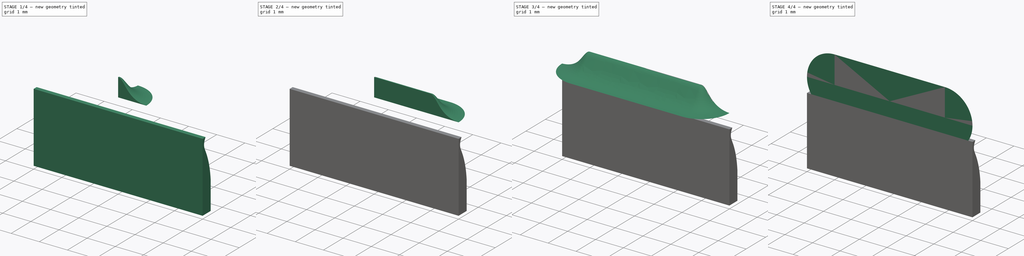
[diagram: build sequence overview — one tinted view per stage of 4, left to right]
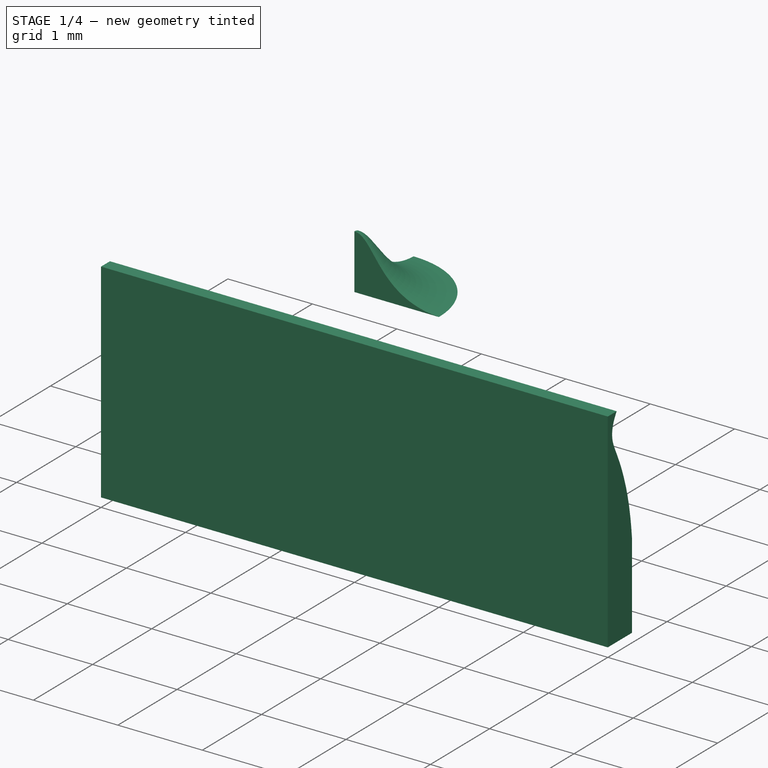
[diagram: stage 1 of 4 — iso view after this stage's code; geometry added in this stage tinted green]
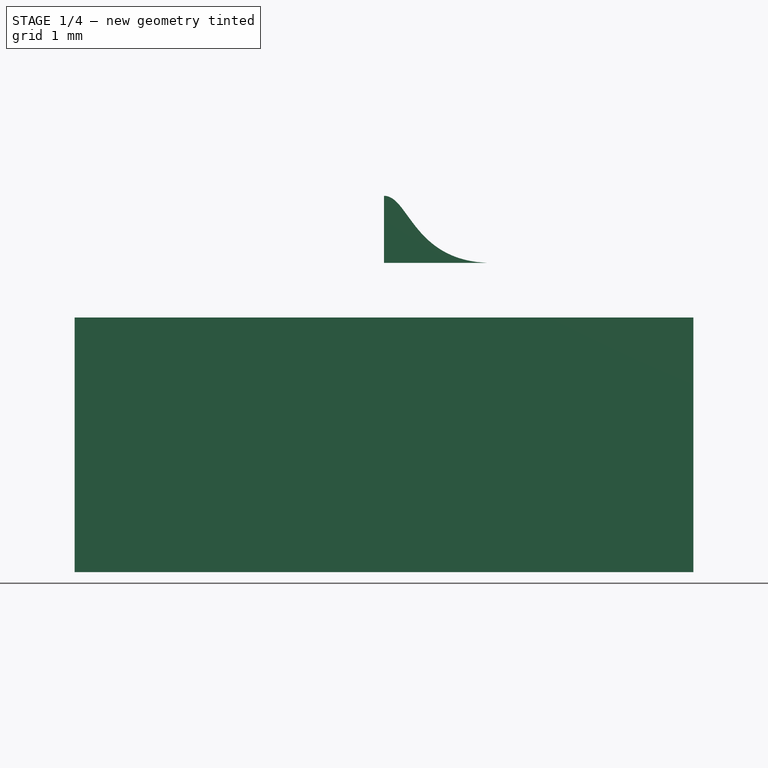
[diagram: stage 1 of 4 — front view after this stage's code; geometry added in this stage tinted green]
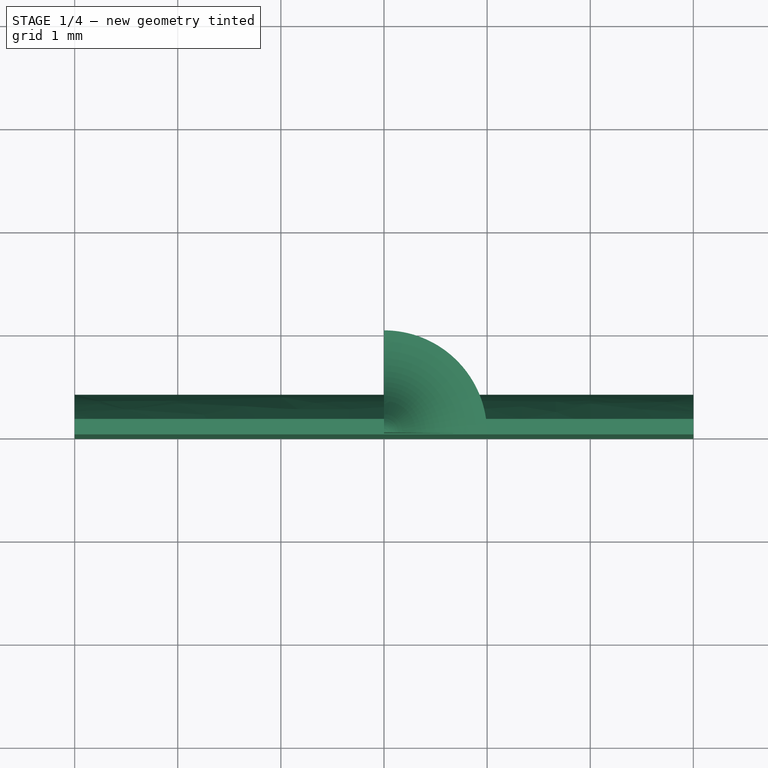
[diagram: stage 1 of 4 — top view after this stage's code; geometry added in this stage tinted green]
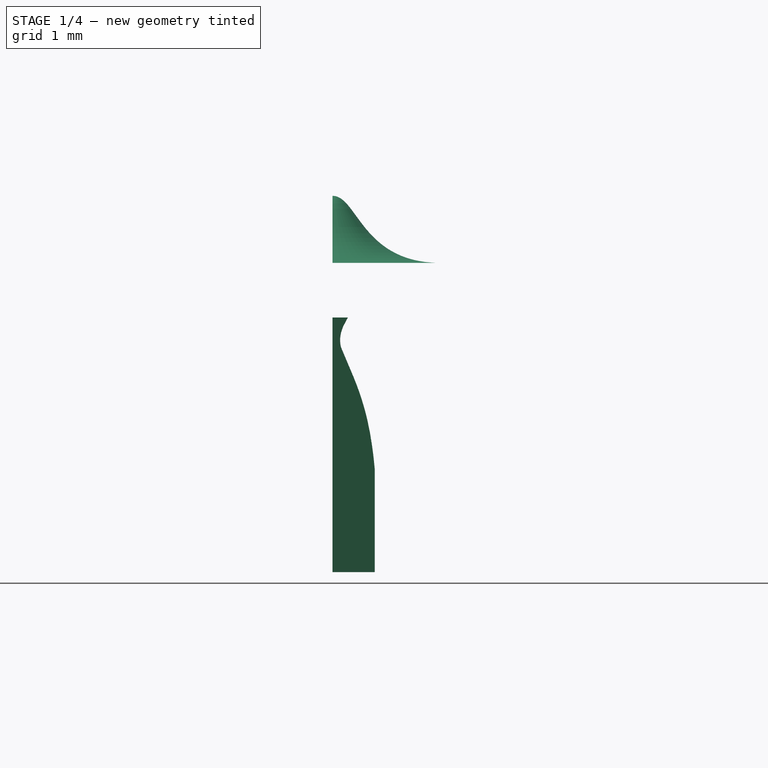
[diagram: stage 1 of 4 — right view after this stage's code; geometry added in this stage tinted green]
FCSTD DOCUMENT  (FreeCAD 0.21R33668 +26 (Git))
Label: snap-fit_pin-hole
License: All rights reserved
LicenseURL: http://en.wikipedia.org/wiki/All_rights_reserved
objects: Part::MultiFuse×4, Sketcher::SketchObject×3, PartDesign::Body×3, PartDesign::Pad×2, Part::Mirroring×2, PartDesign::Revolution×1
note: 18 computed .brp shape members not serialized (recipe doc carries the construction recipe); baked Part::Feature solids carry a one-line shape summary decoded from their .brp

FEATURE [PartDesign::Body] Body
  Group = -> [Sketch,Pad]
  Origin = -> Origin
  Tip = -> Pad
FEATURE [Sketcher::SketchObject] Sketch001
  FullyConstrained = true
  MapMode = 5
  Placement = pos=(0,0,0) rot=(0.57735,0.57735,0.57735;2.0944rad)
  sketch-geometry (10):
    g0: GeomPoint X=0 Y=0.65 Z=0
    g1-g4: Circle x4 (B-spline internal-alignment scaffolding for g5; pole/knot coordinates omitted)
    g5: BSplineCurve PolesCount=4 KnotsCount=2 Degree=3 IsPeriodic=0
    g6: GeomPoint X=1 Y=0 Z=0
    g7: GeomPoint X=0 Y=0.65 Z=0
    g8: LineSegment StartX=1 StartY=0 StartZ=0 EndX=0 EndY=0 EndZ=0
    g9: LineSegment StartX=0 StartY=0.65 StartZ=0 EndX=0 EndY=0 EndZ=0
  constraints (20):
    c: PointOnObject(g5,g-1)
    c: PointOnObject(g0,g-2)
    c: DistanceY(g-1,g0) = 0.65  'h'
    c: Weight(g1) = 1
    c: Equal(g1,g2)
    c: Equal(g1,g3)
    c: Equal(g1,g4)
    c: Coincident(g5,g0)
    c: InternalAlignment(g1-g4 -> g5) x4
    c: InternalAlignment(g6,g5)
    c: InternalAlignment(g7,g5)
    c: DistanceX(g2,g-1) = -0.28  'x1'
    c: DistanceY(g2,g-1) = -0.03012  'y1'
    c: DistanceX(g3,g-1) = -0.24  'x2'
    c: Coincident(g8,g5)
    c: Coincident(g8,g-1)
    c: Coincident(g9,g5)
    c: Coincident(g9,g8)
    c: DistanceX(g-1,g5) = 1
    c: Horizontal(g3,g5)
FEATURE [PartDesign::Revolution] Revolution
  Angle = 90
  Axis = (0,0,1)
  Base = (0,0,0)
  Placement = pos=(0,0,0) rot=(0.57735,0.57735,0.57735;2.0944rad)
  Profile = -> Sketch001
  ReferenceAxis = -> Sketch001 [V_Axis]
  Reversed = true
FEATURE [Sketcher::SketchObject] Sketch002
  FullyConstrained = true
  MapMode = 5
  Placement = pos=(0,0,0) rot=(0.57735,0.57735,0.57735;2.0944rad)
  Support = -> [YZ_Plane002]
  sketch-geometry (15):
    g0: LineSegment StartX=0 StartY=-3 StartZ=0 EndX=0.41 EndY=-3 EndZ=0
    g1: LineSegment StartX=0.41 StartY=-3 StartZ=0 EndX=0.41 EndY=-2 EndZ=0
    g2: LineSegment StartX=0 StartY=-0.53 StartZ=0 EndX=0 EndY=-3 EndZ=0
    g3: LineSegment StartX=0 StartY=-0.53 StartZ=0 EndX=0.15 EndY=-0.53 EndZ=0
    g4-g9: Circle x6 (B-spline internal-alignment scaffolding for g10; pole/knot coordinates omitted)
    g10: BSplineCurve PolesCount=6 KnotsCount=4 Degree=3 IsPeriodic=0
    g11-g14: GeomPoint x4 (B-spline internal-alignment scaffolding for g10; pole/knot coordinates omitted)
  constraints (27):
    c: PointOnObject(g0,g-2)
    c: Horizontal(g0)
    c: Coincident(g1,g0)
    c: Vertical(g1)
    c: DistanceY(g0) = -3
    c: DistanceY(g1,g1) = 1
    c: PointOnObject(g2,g-2)
    c: Coincident(g2,g0)
    c: DistanceX(g0) = 0.41
    c: Coincident(g3,g2)
    c: Horizontal(g3)
    c: Weight(g4) = 1
    c: Coincident(g10,g3)
    c: Equal(g4, g5-g9) x5
    c: Coincident(g10,g1)
    c: InternalAlignment(g4-g9 -> g10) x6
    c: InternalAlignment(g11-g14 -> g10) x4
    c: DistanceX(g13) = 0.2633
    c: DistanceY(g13) = -1.26306
    c: DistanceX(g8) = 0.378371
    c: DistanceY(g8) = -1.63303
    c: DistanceX(g6) = 0.132942
    c: DistanceY(g6) = -0.952639
    c: DistanceX(g12) = 0.125736
    c: DistanceY(g12) = -0.9345
    c: DistanceX(g3,g3) = 0.15
    c: DistanceY(g2) = -0.53
FEATURE [PartDesign::Pad] Pad001
  Direction = (1,-2e-16,3e-16)
  Length = 3
  Length2 = 3
  Placement = pos=(0,0,0) rot=(1,1,1;2.0944rad)
  Profile = -> Sketch002
  ReferenceAxis = -> Sketch002 [N_Axis]
  Type = 4
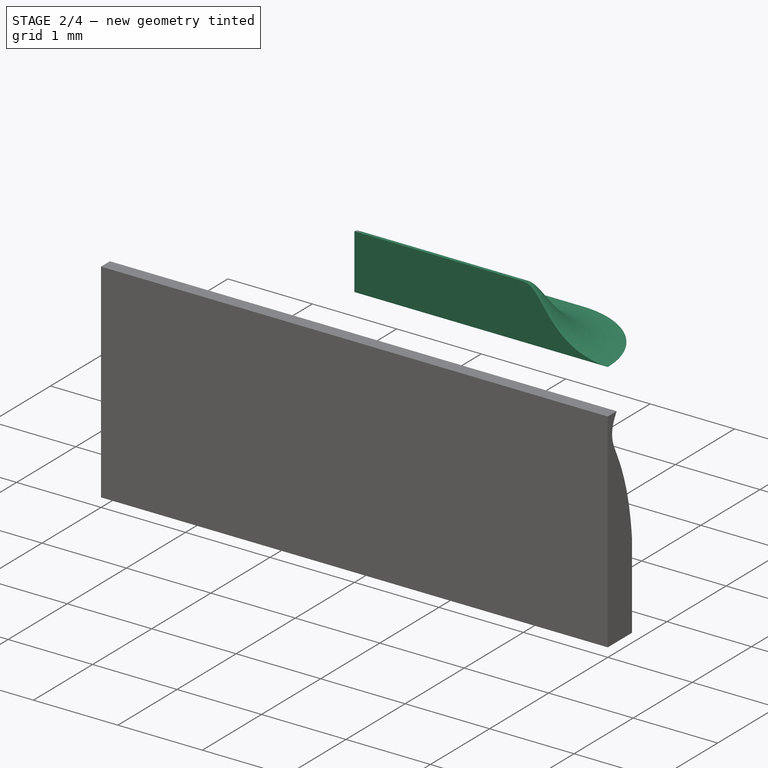
[diagram: stage 2 of 4 — iso view after this stage's code; geometry added in this stage tinted green]
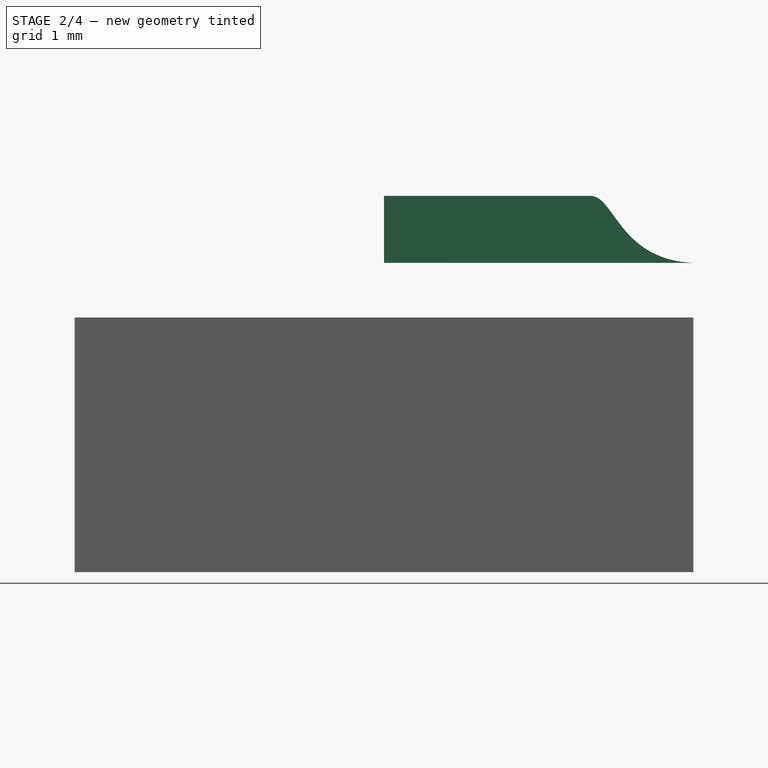
[diagram: stage 2 of 4 — front view after this stage's code; geometry added in this stage tinted green]
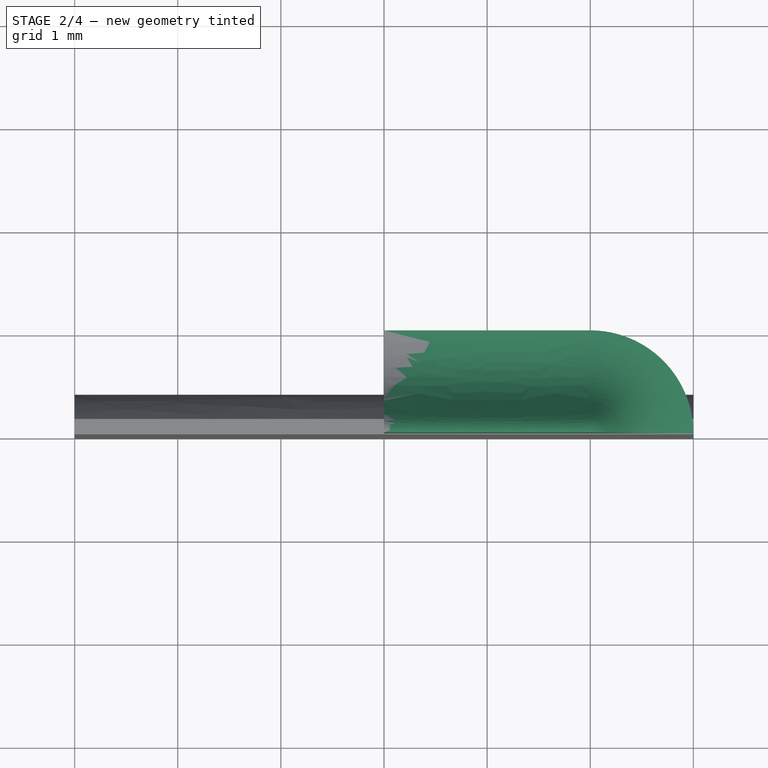
[diagram: stage 2 of 4 — top view after this stage's code; geometry added in this stage tinted green]
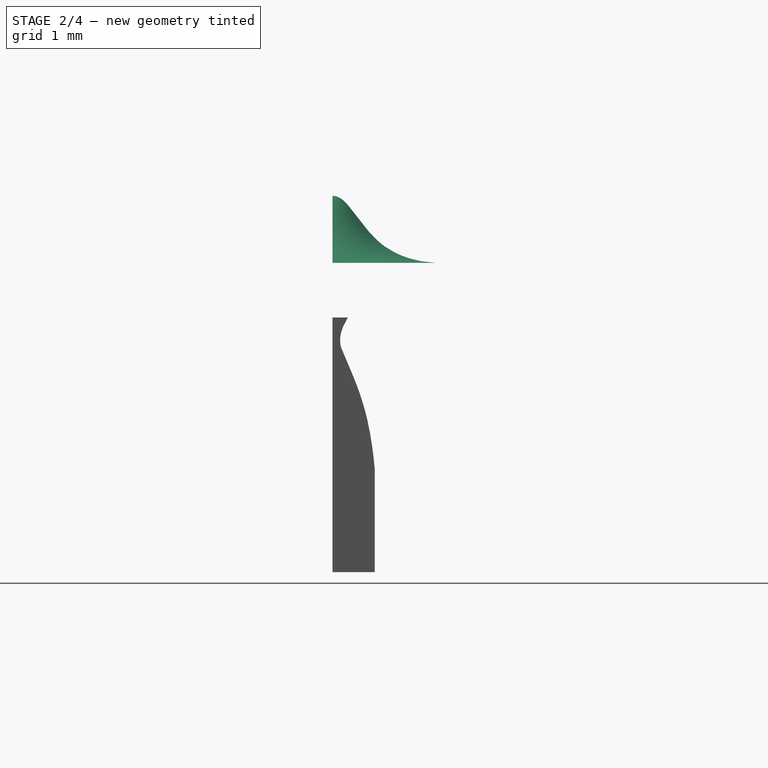
[diagram: stage 2 of 4 — right view after this stage's code; geometry added in this stage tinted green]
FEATURE [Sketcher::SketchObject] Sketch
  FullyConstrained = true
  MapMode = 5
  Placement = pos=(0,0,0) rot=(0.57735,0.57735,0.57735;2.0944rad)
  sketch-geometry (10):
    g0: GeomPoint X=0 Y=0.65 Z=0
    g1-g4: Circle x4 (B-spline internal-alignment scaffolding for g5; pole/knot coordinates omitted)
    g5: BSplineCurve PolesCount=4 KnotsCount=2 Degree=3 IsPeriodic=0
    g6: GeomPoint X=1 Y=0 Z=0
    g7: GeomPoint X=0 Y=0.65 Z=0
    g8: LineSegment StartX=1 StartY=0 StartZ=0 EndX=0 EndY=0 EndZ=0
    g9: LineSegment StartX=0 StartY=0.65 StartZ=0 EndX=0 EndY=0 EndZ=0
  constraints (20):
    c: PointOnObject(g5,g-1)
    c: PointOnObject(g0,g-2)
    c: DistanceY(g-1,g0) = 0.65  'h'
    c: Weight(g1) = 1
    c: Equal(g1,g2)
    c: Equal(g1,g3)
    c: Equal(g1,g4)
    c: Coincident(g5,g0)
    c: InternalAlignment(g1-g4 -> g5) x4
    c: InternalAlignment(g6,g5)
    c: InternalAlignment(g7,g5)
    c: DistanceX(g2,g-1) = -0.28  'x1'
    c: DistanceY(g2,g-1) = -0.03012  'y1'
    c: DistanceX(g3,g-1) = -0.24  'x2'
    c: Coincident(g8,g5)
    c: Coincident(g8,g-1)
    c: Coincident(g9,g5)
    c: Coincident(g9,g8)
    c: DistanceX(g-1,g5) = 1
    c: Horizontal(g3,g5)
FEATURE [PartDesign::Pad] Pad
  Direction = (1,0,0)
  Length = 2
  Length2 = 2
  Placement = pos=(0,0,0) rot=(0.57735,0.57735,0.57735;2.0944rad)
  Profile = -> Sketch
  ReferenceAxis = -> Sketch [N_Axis]
  Type = 0
FEATURE [PartDesign::Body] Body001
  Group = -> [Sketch001,Revolution]
  Origin = -> Origin001
  Placement = pos=(2,0,0) rot=(0,0,1;0rad)
  Tip = -> Revolution
FEATURE [Part::MultiFuse] Fusion
  Shapes = -> [Body,Body001]
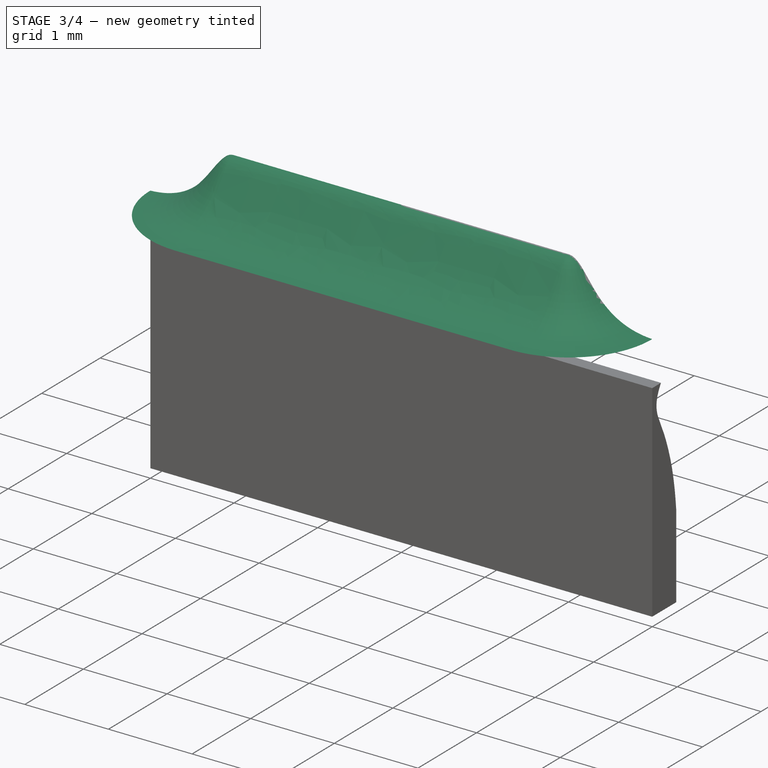
[diagram: stage 3 of 4 — iso view after this stage's code; geometry added in this stage tinted green]
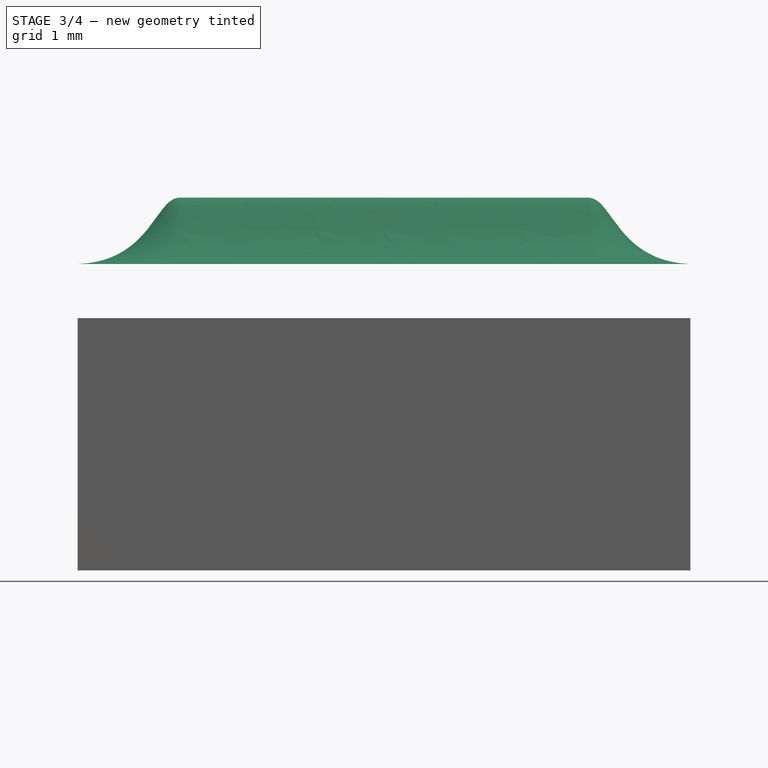
[diagram: stage 3 of 4 — front view after this stage's code; geometry added in this stage tinted green]
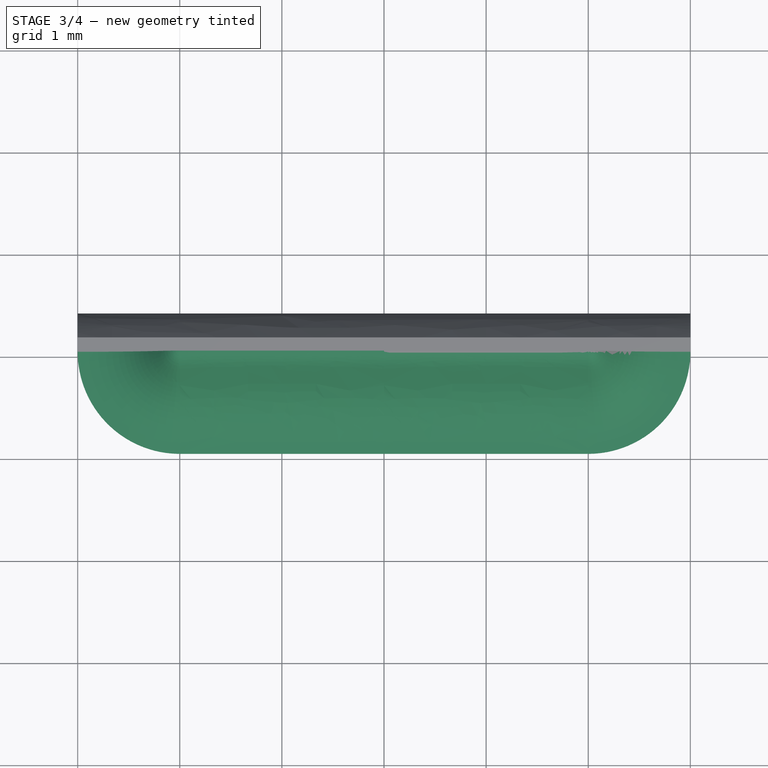
[diagram: stage 3 of 4 — top view after this stage's code; geometry added in this stage tinted green]
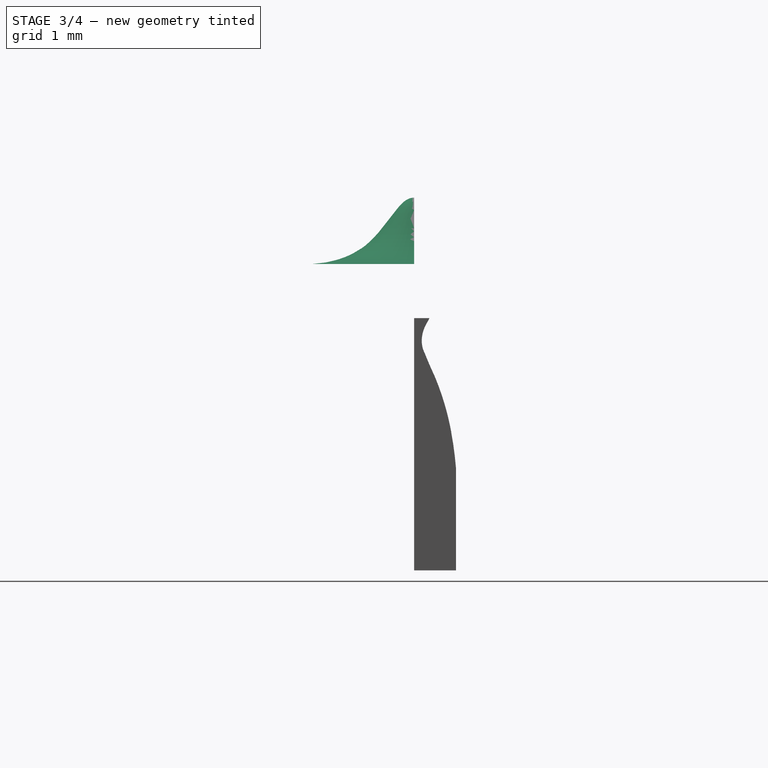
[diagram: stage 3 of 4 — right view after this stage's code; geometry added in this stage tinted green]
FEATURE [Part::Mirroring] Part__Mirroring  label="Fusion (Mirror #1)"
  Base = (0,0,0)
  Normal = (1,0,0)
  Source = -> Fusion
FEATURE [Part::MultiFuse] Fusion001
  Shapes = -> [Part__Mirroring,Fusion]
FEATURE [Part::Mirroring] Part__Mirroring001  label="Fusion001 (Mirror #2)"
  Base = (0,0,0)
  Normal = (0,1,0)
  Source = -> Fusion001
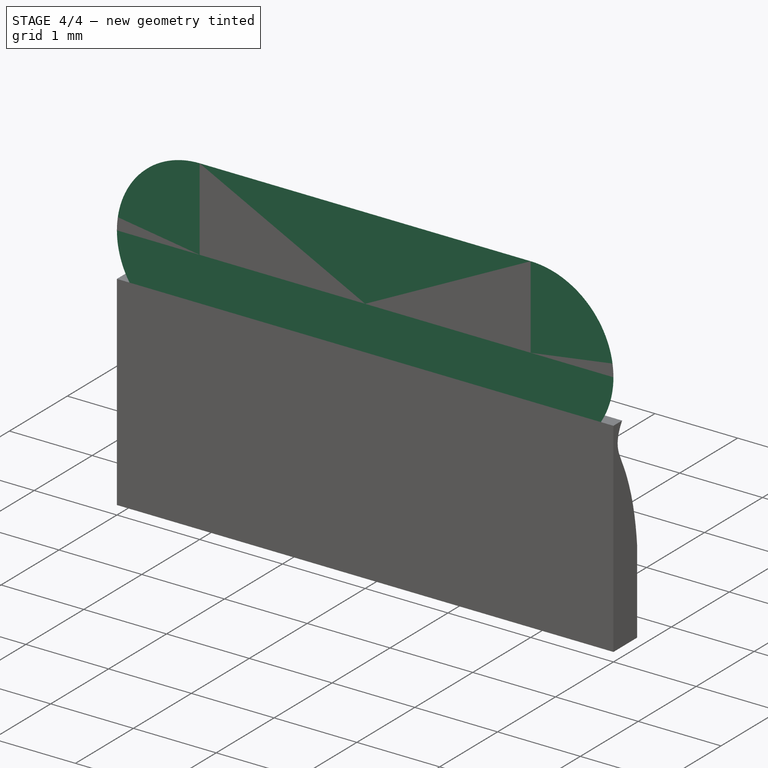
[diagram: stage 4 of 4 — iso view after this stage's code; geometry added in this stage tinted green]
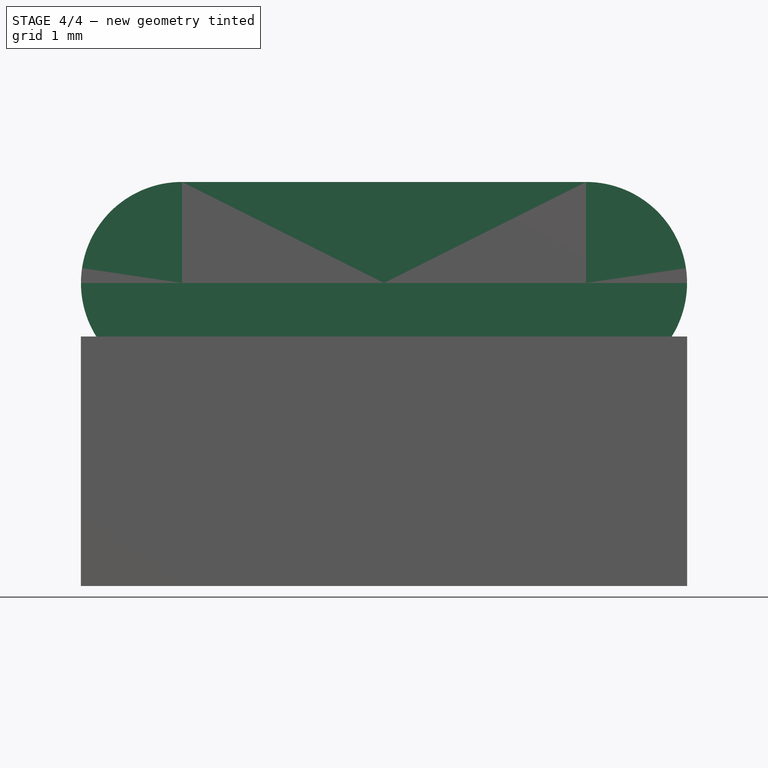
[diagram: stage 4 of 4 — front view after this stage's code; geometry added in this stage tinted green]
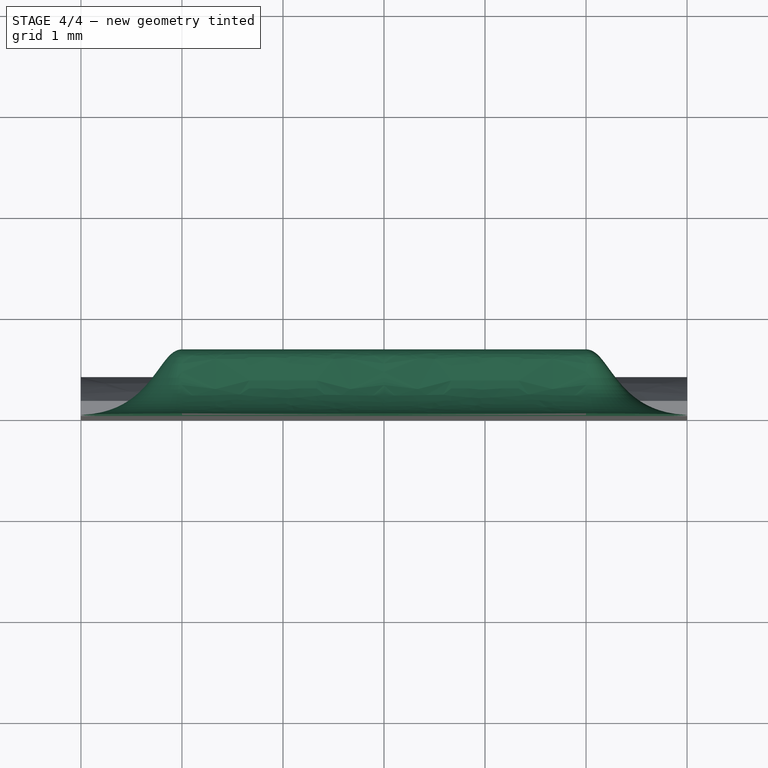
[diagram: stage 4 of 4 — top view after this stage's code; geometry added in this stage tinted green]
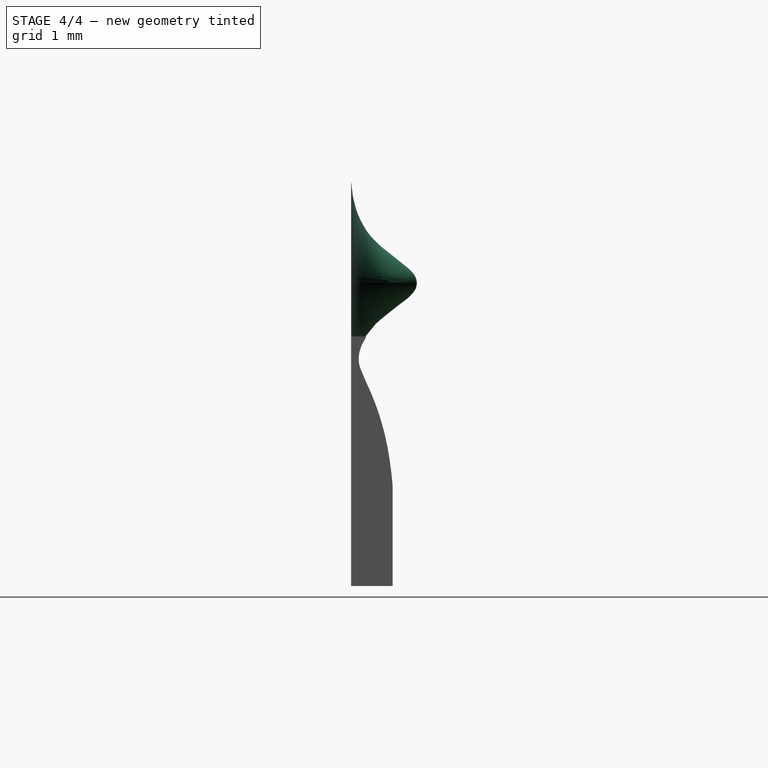
[diagram: stage 4 of 4 — right view after this stage's code; geometry added in this stage tinted green]
FEATURE [Part::MultiFuse] Fusion002
  Placement = pos=(0,0,0) rot=(-1,0,0;1.5708rad)
  Shapes = -> [Fusion001,Part__Mirroring001]
FEATURE [PartDesign::Body] Body002
  Group = -> [Sketch002,Pad001]
  Origin = -> Origin002
  Tip = -> Pad001
FEATURE [Part::MultiFuse] Fusion003
  Shapes = -> [Fusion002,Body002]
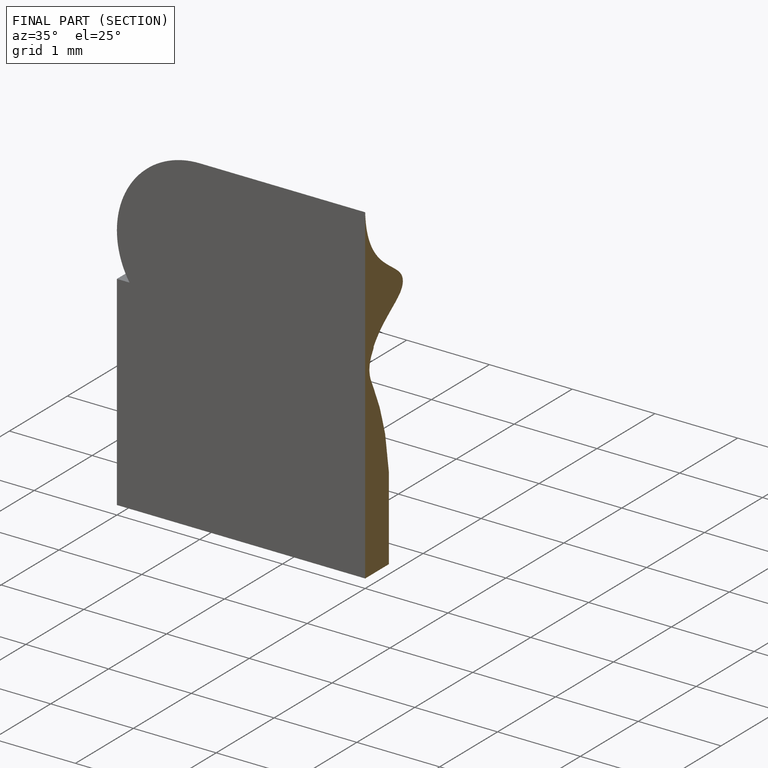
[diagram: finished part — half-section view (interior)]
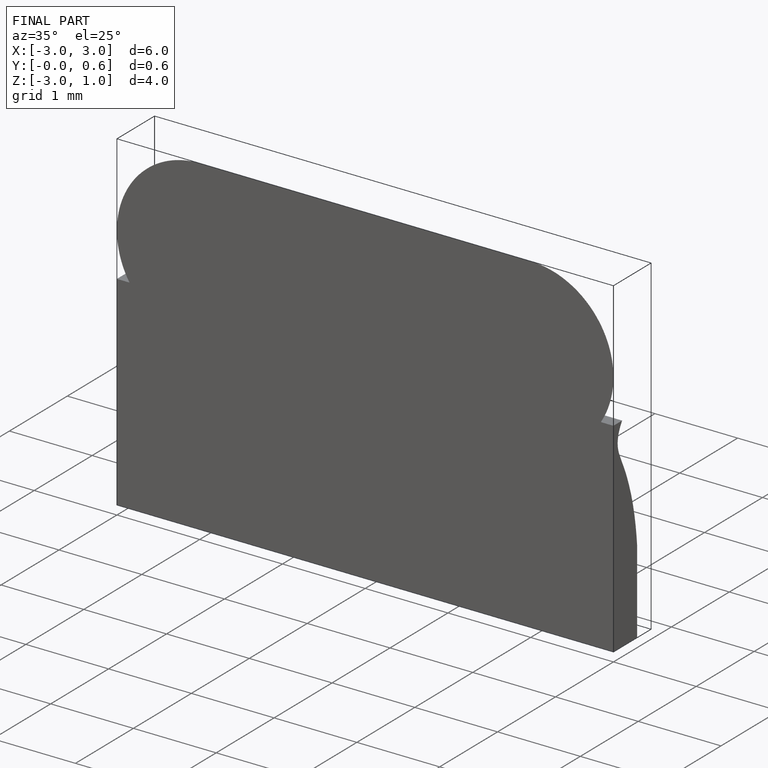
[diagram: finished part — iso view with bounding-box wireframe]
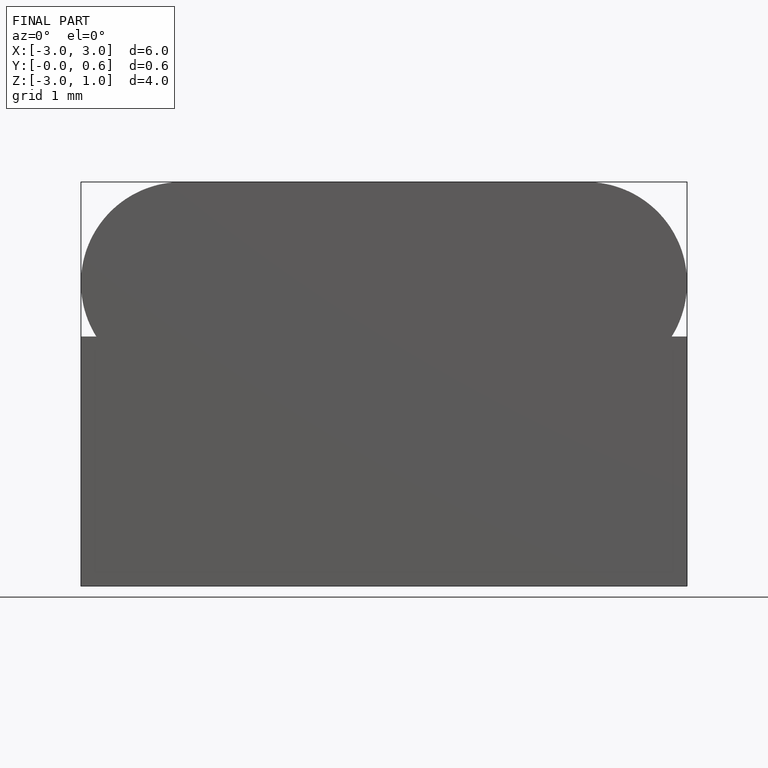
[diagram: finished part — front view with bounding-box wireframe]
